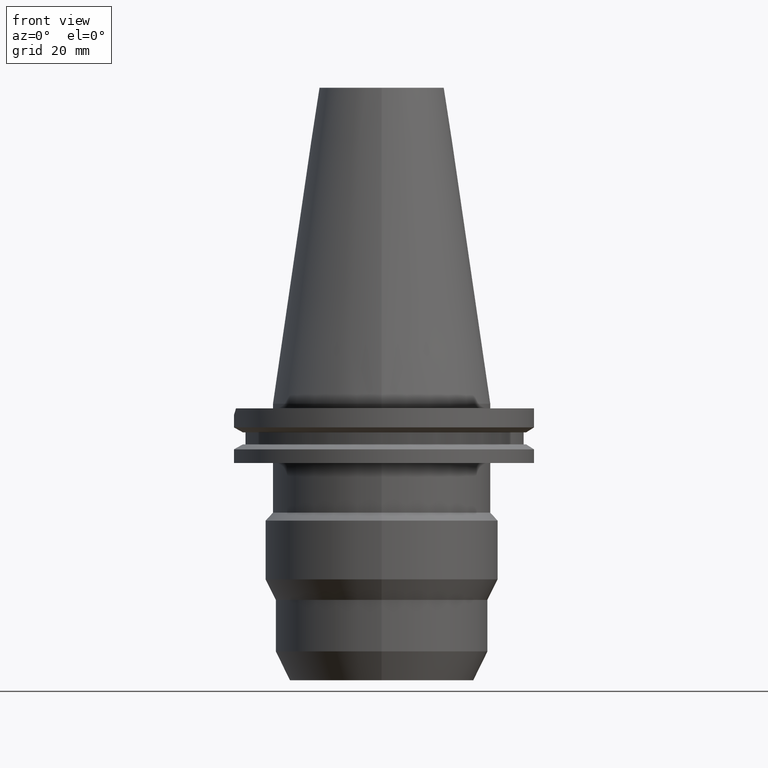
[diagram: clean part render]
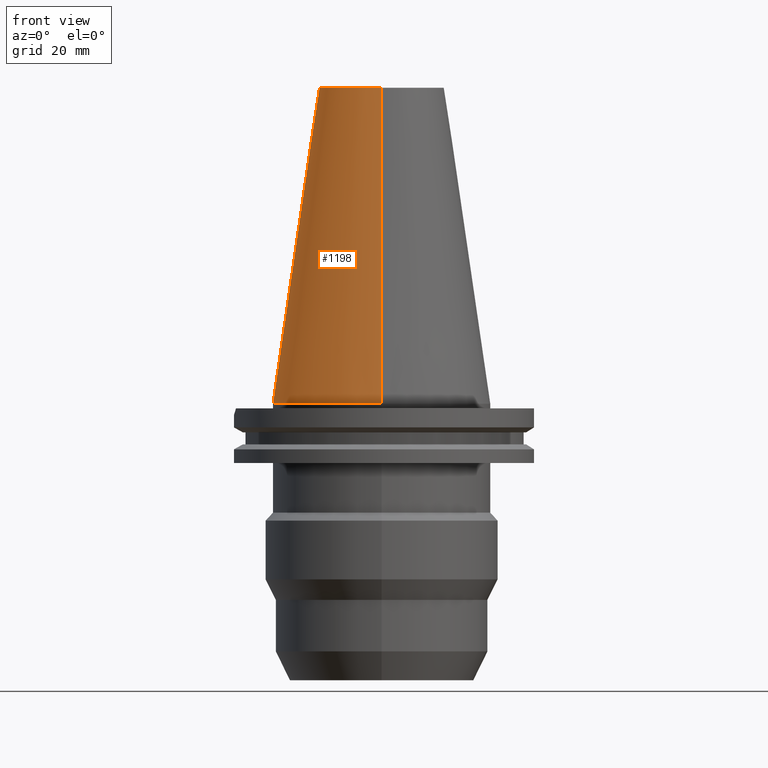
[diagram: same view with one face highlighted and labeled with its STEP entity id]
A machine part, front view. The second image highlights one B-rep face of the part: STEP entity #1198.
In plain terms, the highlighted conical surface has half-angle 8.297 deg.
Its self-contained STEP definition (entity closure, byte-faithful):
#17=CARTESIAN_POINT('',(0.E0,0.E0,1.016E2));
#18=DIRECTION('',(0.E0,0.E0,-1.E0));
#19=DIRECTION('',(0.E0,-1.E0,0.E0));
#20=AXIS2_PLACEMENT_3D('',#17,#18,#19);
#50=DIRECTION('',(0.E0,-1.443069799457E-1,-9.895329683942E-1));
#51=VECTOR('',#50,1.026746993229E2);
#52=CARTESIAN_POINT('',(0.E0,-2.010832422387E1,1.016E2));
#53=LINE('',#52,#51);
#57=CARTESIAN_POINT('',(0.E0,0.E0,7.958078640513E-13));
#58=DIRECTION('',(0.E0,0.E0,-1.E0));
#59=DIRECTION('',(0.E0,-1.E0,0.E0));
#60=AXIS2_PLACEMENT_3D('',#57,#58,#59);
#65=DIRECTION('',(0.E0,1.443069799457E-1,-9.895329683942E-1));
#66=VECTOR('',#65,1.026746993229E2);
#67=CARTESIAN_POINT('',(0.E0,2.010832422387E1,1.016E2));
#68=LINE('',#67,#66);
#998=CARTESIAN_POINT('',(0.E0,-2.010832422388E1,1.016E2));
#999=CARTESIAN_POINT('',(0.E0,2.010832422388E1,1.016E2));
#1000=VERTEX_POINT('',#998);
#1001=VERTEX_POINT('',#999);
#1006=CARTESIAN_POINT('',(0.E0,3.4925E1,5.258016244625E-13));
#1007=VERTEX_POINT('',#1006);
#1008=CARTESIAN_POINT('',(0.E0,-3.4925E1,5.258016244625E-13));
#1009=VERTEX_POINT('',#1008);
#1184=CARTESIAN_POINT('',(0.E0,0.E0,5.08E1));
#1185=DIRECTION('',(0.E0,0.E0,-1.E0));
#1186=DIRECTION('',(0.E0,-1.E0,0.E0));
#1187=AXIS2_PLACEMENT_3D('',#1184,#1185,#1186);
#1188=CONICAL_SURFACE('',#1187,2.751666211194E1,8.29715E0);
#1190=ORIENTED_EDGE('',*,*,#1189,.F.);
#1191=ORIENTED_EDGE('',*,*,#1171,.F.);
#1193=ORIENTED_EDGE('',*,*,#1192,.T.);
#1195=ORIENTED_EDGE('',*,*,#1194,.T.);
#1196=EDGE_LOOP('',(#1190,#1191,#1193,#1195));
#1197=FACE_OUTER_BOUND('',#1196,.F.);
#21=CIRCLE('',#20,2.010832422388E1);
#61=CIRCLE('',#60,3.4925E1);
#1171=EDGE_CURVE('',#1000,#1001,#21,.T.);
#1189=EDGE_CURVE('',#1001,#1007,#68,.T.);
#1192=EDGE_CURVE('',#1000,#1009,#53,.T.);
#1194=EDGE_CURVE('',#1009,#1007,#61,.T.);
#1198=ADVANCED_FACE('',(#1197),#1188,.T.);